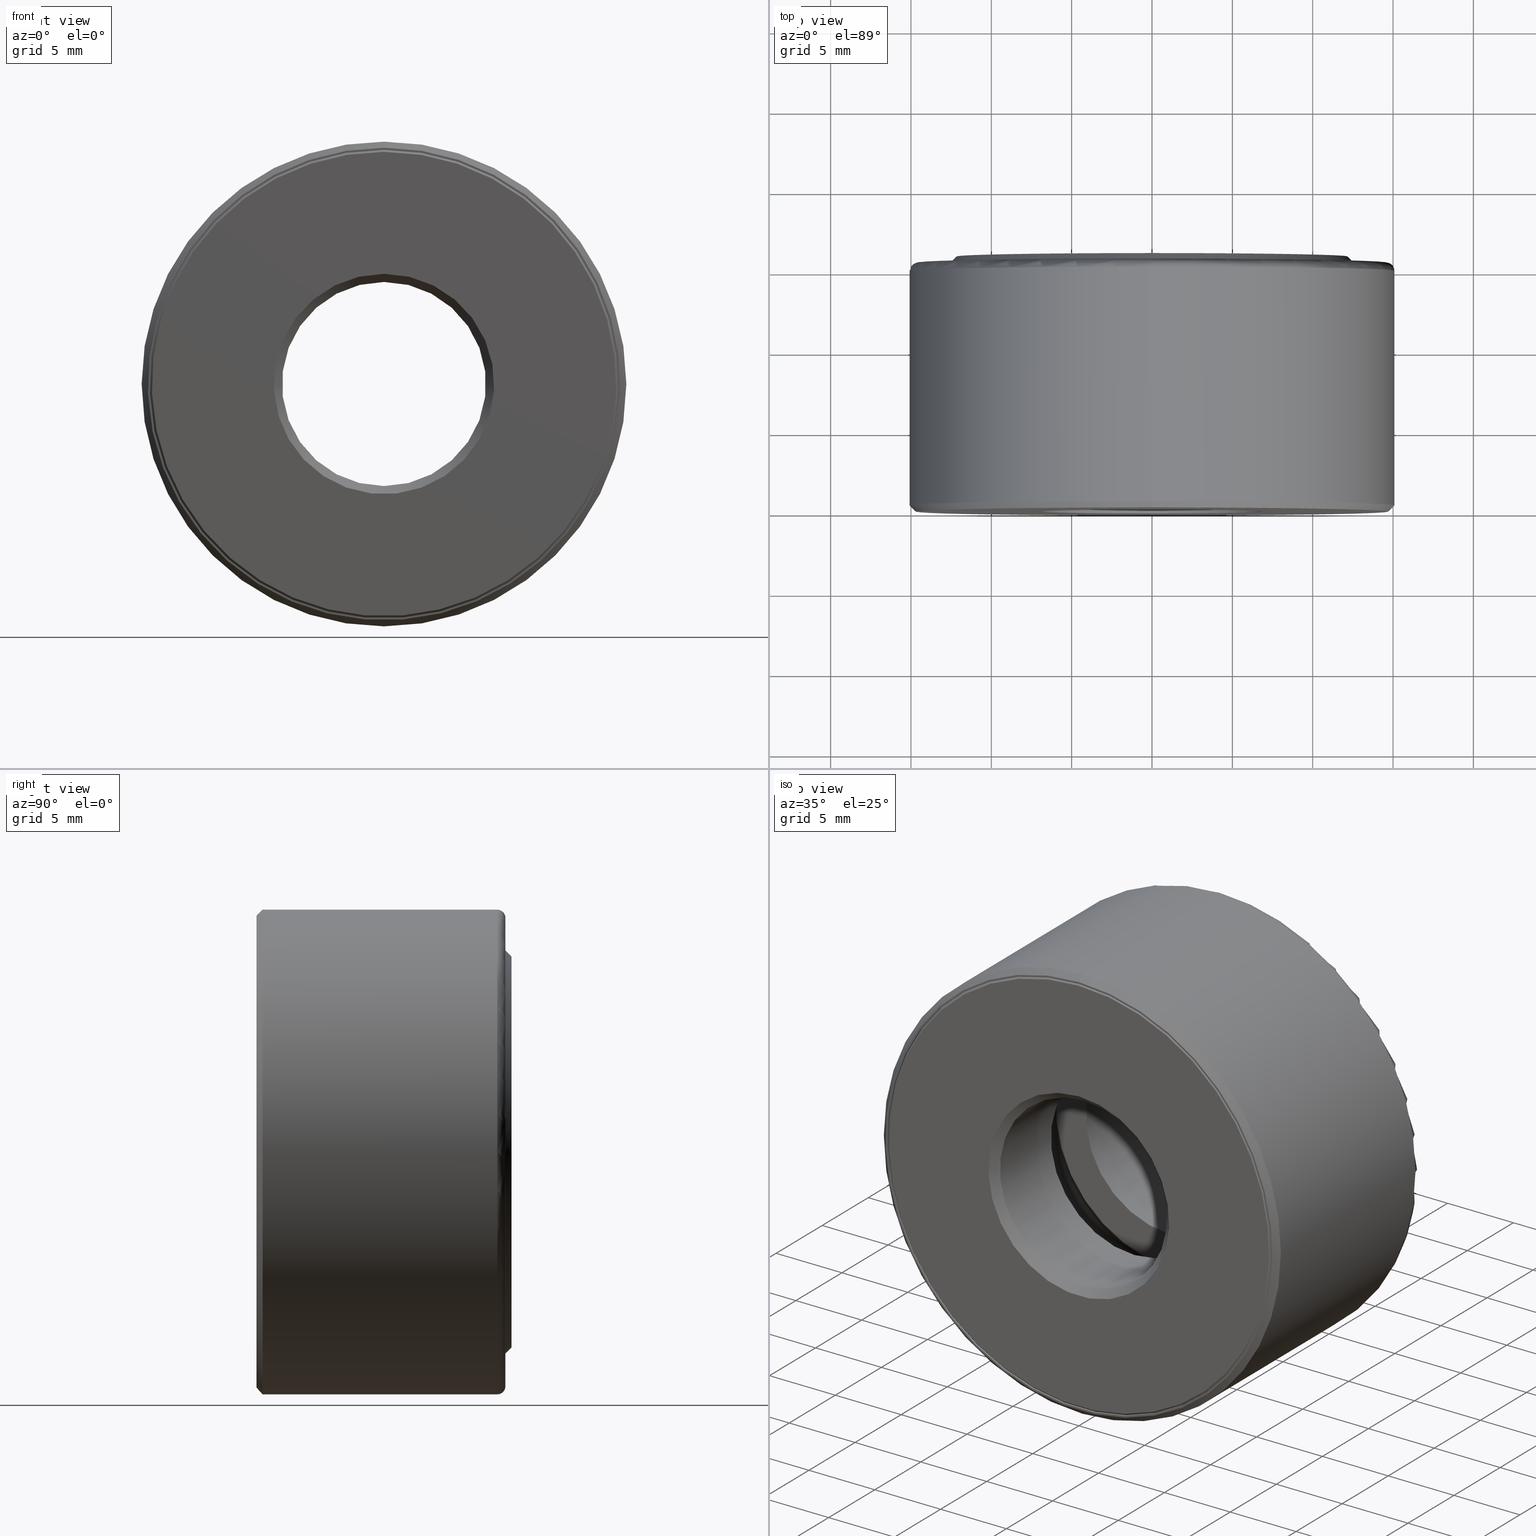
[diagram: canonical four-view strip — front | top / right | iso, engineering-drawing reading convention]
A machine part, canonical four-view strip (front | top / right | iso — engineering-drawing reading convention). The complete STEP part file that produces these views, byte-faithful:
ISO-10303-21;
HEADER;
FILE_DESCRIPTION (( 'STEP AP203' ),
    '1' );
FILE_NAME ('T-100-1.step',
    '2016-06-29T18:27:08',
    ( '' ),
    ( '' ),
    'SwSTEP 2.0',
    'SolidWorks 2016',
    '' );
FILE_SCHEMA (( 'CONFIG_CONTROL_DESIGN' ));
ENDSEC;

DATA;
#1 = DIRECTION ( 'NONE',  ( -0.0000000000000000000, 1.000000000000000000, -0.0000000000000000000 ) ) ;
#2 = EDGE_CURVE ( 'NONE', #15, #15, #521, .T. ) ;
#3 = DIRECTION ( 'NONE',  ( 1.047444401652940300E-014, 0.0000000000000000000, 1.000000000000000000 ) ) ;
#4 = EDGE_LOOP ( 'NONE', ( #420 ) ) ;
#5 = APPROVAL_PERSON_ORGANIZATION ( #264, #194, #90 ) ;
#6 = DIRECTION ( 'NONE',  ( -0.0000000000000000000, 1.000000000000000000, -0.0000000000000000000 ) ) ;
#7 = SPHERICAL_SURFACE ( 'NONE', #17, 0.1250000000000000600 ) ;
#8 = EDGE_CURVE ( 'NONE', #177, #177, #534, .T. ) ;
#9 = DIRECTION ( 'NONE',  ( -0.0000000000000000000, 1.000000000000000000, -0.0000000000000000000 ) ) ;
#10 = ADVANCED_FACE ( 'NONE', ( #543, #562 ), #100, .T. ) ;
#11 = DIRECTION ( 'NONE',  ( 0.0000000000000000000, 0.0000000000000000000, 1.000000000000000000 ) ) ;
#12 = DIRECTION ( 'NONE',  ( 1.000000000000000000, 0.0000000000000000000, 0.0000000000000000000 ) ) ;
#13 = ORIENTED_EDGE ( 'NONE', *, *, #145, .F. ) ;
#14 = EDGE_LOOP ( 'NONE', ( #122 ) ) ;
#15 = VERTEX_POINT ( 'NONE', #592 ) ;
#16 = EDGE_LOOP ( 'NONE', ( #344 ) ) ;
#17 = AXIS2_PLACEMENT_3D ( 'NONE', #135, #406, #228 ) ;
#18 = AXIS2_PLACEMENT_3D ( 'NONE', #405, #591, #82 ) ;
#19 = EDGE_LOOP ( 'NONE', ( #580 ) ) ;
#20 = CIRCLE ( 'NONE', #52, 0.2499999999999998100 ) ;
#21 = CARTESIAN_POINT ( 'NONE',  ( 0.0000000000000000000, 3.308097179827818800E-016, 0.0000000000000000000 ) ) ;
#22 = CARTESIAN_POINT ( 'NONE',  ( 0.0000000000000000000, 0.0000000000000000000, 0.0000000000000000000 ) ) ;
#23 = MANIFOLD_SOLID_BREP ( 'Revolve2[1]', #175 ) ;
#24 = DIRECTION ( 'NONE',  ( 0.0000000000000000000, 0.0000000000000000000, 1.000000000000000000 ) ) ;
#25 = ORIENTED_EDGE ( 'NONE', *, *, #55, .F. ) ;
#26 = FACE_OUTER_BOUND ( 'NONE', #365, .T. ) ;
#27 = DIRECTION ( 'NONE',  ( 0.0000000000000000000, 0.0000000000000000000, -1.000000000000000000 ) ) ;
#28 = FACE_OUTER_BOUND ( 'NONE', #491, .T. ) ;
#29 = AXIS2_PLACEMENT_3D ( 'NONE', #251, #9, #335 ) ;
#30 = DIRECTION ( 'NONE',  ( 0.0000000000000000000, 0.0000000000000000000, 1.000000000000000000 ) ) ;
#31 = EDGE_LOOP ( 'NONE', ( #560 ) ) ;
#32 = EDGE_LOOP ( 'NONE', ( #388 ) ) ;
#33 = CC_DESIGN_DATE_AND_TIME_ASSIGNMENT ( #596, #371, ( #537 ) ) ;
#34 = DIRECTION ( 'NONE',  ( 0.0000000000000000000, 0.0000000000000000000, 1.000000000000000000 ) ) ;
#35 = AXIS2_PLACEMENT_3D ( 'NONE', #508, #235, #204 ) ;
#36 = PERSON_AND_ORGANIZATION_ROLE ( 'design_supplier' ) ;
#37 = ORIENTED_EDGE ( 'NONE', *, *, #2, .T. ) ;
#38 = LOCAL_TIME ( 14, 27, 8.000000000000000000, #315 ) ;
#39 = APPROVAL_STATUS ( 'not_yet_approved' ) ;
#40 = VERTEX_POINT ( 'NONE', #465 ) ;
#41 = FACE_BOUND ( 'NONE', #4, .T. ) ;
#42 =( LENGTH_UNIT ( ) NAMED_UNIT ( * ) SI_UNIT ( $, .METRE. ) );
#43 = APPLICATION_PROTOCOL_DEFINITION ( 'international standard', 'config_control_design', 1994, #323 ) ;
#44 = EDGE_CURVE ( 'NONE', #505, #505, #60, .T. ) ;
#45 = AXIS2_PLACEMENT_3D ( 'NONE', #277, #514, #466 ) ;
#46 =( NAMED_UNIT ( * ) PLANE_ANGLE_UNIT ( ) SI_UNIT ( $, .RADIAN. ) );
#47 = ADVANCED_FACE ( 'NONE', ( #498, #161 ), #325, .T. ) ;
#48 = DIRECTION ( 'NONE',  ( 0.0000000000000000000, -1.000000000000000000, 0.0000000000000000000 ) ) ;
#49 = CLOSED_SHELL ( 'NONE', ( #598 ) ) ;
#50 = DATE_AND_TIME ( #183, #305 ) ;
#51 = CONICAL_SURFACE ( 'NONE', #493, 0.2499999999999998100, 0.7853981633974517200 ) ;
#52 = AXIS2_PLACEMENT_3D ( 'NONE', #280, #320, #361 ) ;
#53 = CARTESIAN_POINT ( 'NONE',  ( -4.606136756268805600E-015, 0.3125000000000004400, -0.4397500000000001400 ) ) ;
#54 = ADVANCED_FACE ( 'NONE', ( #415, #590 ), #568, .F. ) ;
#55 = EDGE_CURVE ( 'NONE', #566, #566, #94, .T. ) ;
#56 = DIRECTION ( 'NONE',  ( 0.0000000000000000000, 0.0000000000000000000, 1.000000000000000000 ) ) ;
#57 = ORIENTED_EDGE ( 'NONE', *, *, #604, .F. ) ;
#58 = LENGTH_MEASURE_WITH_UNIT ( LENGTH_MEASURE( 0.02539999999999999900 ), #42 );
#59 = VERTEX_POINT ( 'NONE', #195 ) ;
#60 = CIRCLE ( 'NONE', #334, 0.3397500000000001100 ) ;
#61 = DIRECTION ( 'NONE',  ( -0.0000000000000000000, 1.000000000000000000, -0.0000000000000000000 ) ) ;
#62 = AXIS2_PLACEMENT_3D ( 'NONE', #53, #432, #3 ) ;
#63 = DIRECTION ( 'NONE',  ( 0.0000000000000000000, 0.0000000000000000000, 1.000000000000000000 ) ) ;
#64 = ORIENTED_EDGE ( 'NONE', *, *, #181, .T. ) ;
#65 = ORGANIZATION ( 'UNSPECIFIED', 'UNSPECIFIED', '' ) ;
#66 = CIRCLE ( 'NONE', #260, 0.2499999999999998100 ) ;
#67 = CARTESIAN_POINT ( 'NONE',  ( 0.0000000000000000000, 0.2375000000000005400, 0.0000000000000000000 ) ) ;
#68 = DIRECTION ( 'NONE',  ( -0.0000000000000000000, 1.000000000000000000, 0.0000000000000000000 ) ) ;
#69 = AXIS2_PLACEMENT_3D ( 'NONE', #526, #252, #384 ) ;
#70 = ORIENTED_EDGE ( 'NONE', *, *, #307, .T. ) ;
#71 = VERTEX_POINT ( 'NONE', #464 ) ;
#72 = CIRCLE ( 'NONE', #366, 0.3397500000000001100 ) ;
#73 = DIRECTION ( 'NONE',  ( 0.0000000000000000000, -0.0000000000000000000, -1.000000000000000000 ) ) ;
#74 = DIRECTION ( 'NONE',  ( 0.0000000000000000000, 0.0000000000000000000, -1.000000000000000000 ) ) ;
#75 = EDGE_LOOP ( 'NONE', ( #223 ) ) ;
#76 = CC_DESIGN_PERSON_AND_ORGANIZATION_ASSIGNMENT ( #504, #419, ( #537 ) ) ;
#77 = CALENDAR_DATE ( 2016, 29, 6 ) ;
#78 = CARTESIAN_POINT ( 'NONE',  ( 0.0000000000000000000, 0.5899999999999999700, 0.0000000000000000000 ) ) ;
#79 = EDGE_LOOP ( 'NONE', ( #13 ) ) ;
#80 = AXIS2_PLACEMENT_3D ( 'NONE', #158, #213, #485 ) ;
#81 = DIRECTION ( 'NONE',  ( 0.0000000000000000000, 0.0000000000000000000, 1.000000000000000000 ) ) ;
#82 = DIRECTION ( 'NONE',  ( 0.0000000000000000000, -0.0000000000000000000, -1.000000000000000000 ) ) ;
#83 = EDGE_LOOP ( 'NONE', ( #539 ) ) ;
#84 = VERTEX_POINT ( 'NONE', #411 ) ;
#85 = CARTESIAN_POINT ( 'NONE',  ( 0.0000000000000000000, 0.3875000000000004000, 0.5667500000000002000 ) ) ;
#86 = CIRCLE ( 'NONE', #430, 0.2499999999999998100 ) ;
#87 = PERSON_AND_ORGANIZATION_ROLE ( 'design_owner' ) ;
#88 = CC_DESIGN_PERSON_AND_ORGANIZATION_ASSIGNMENT ( #151, #87, ( #494 ) ) ;
#89 = ORIENTED_EDGE ( 'NONE', *, *, #112, .T. ) ;
#90 = APPROVAL_ROLE ( '' ) ;
#91 = FACE_OUTER_BOUND ( 'NONE', #14, .T. ) ;
#92 = AXIS2_PLACEMENT_3D ( 'NONE', #123, #221, #178 ) ;
#93 = DIRECTION ( 'NONE',  ( -0.0000000000000000000, 1.000000000000000000, -0.0000000000000000000 ) ) ;
#94 = CIRCLE ( 'NONE', #29, 0.5737500000000004300 ) ;
#95 = CARTESIAN_POINT ( 'NONE',  ( 0.0000000000000000000, 0.5899999999999999700, 0.5937500000000002200 ) ) ;
#96 = CARTESIAN_POINT ( 'NONE',  ( 0.0000000000000000000, 0.6250000000000005600, 0.0000000000000000000 ) ) ;
#97 = ADVANCED_FACE ( 'NONE', ( ), #512, .T. ) ;
#98 = EDGE_CURVE ( 'NONE', #111, #111, #291, .T. ) ;
#99 = CC_DESIGN_PERSON_AND_ORGANIZATION_ASSIGNMENT ( #210, #36, ( #349 ) ) ;
#100 = PLANE ( 'NONE',  #105 ) ;
#101 = ORIENTED_EDGE ( 'NONE', *, *, #152, .T. ) ;
#102 = ADVANCED_FACE ( 'NONE', ( #28, #575 ), #206, .F. ) ;
#103 = LOCAL_TIME ( 14, 27, 8.000000000000000000, #548 ) ;
#104 = FACE_OUTER_BOUND ( 'NONE', #314, .T. ) ;
#105 = AXIS2_PLACEMENT_3D ( 'NONE', #96, #431, #332 ) ;
#106 = PLANE ( 'NONE',  #452 ) ;
#107 = CARTESIAN_POINT ( 'NONE',  ( 0.0000000000000000000, 0.2375000000000004100, 0.0000000000000000000 ) ) ;
#108 = EDGE_LOOP ( 'NONE', ( #57 ) ) ;
#109 = ORIENTED_EDGE ( 'NONE', *, *, #577, .T. ) ;
#110 = CARTESIAN_POINT ( 'NONE',  ( 0.0000000000000000000, 0.3875000000000004000, 0.0000000000000000000 ) ) ;
#111 = VERTEX_POINT ( 'NONE', #459 ) ;
#112 = EDGE_CURVE ( 'NONE', #250, #250, #362, .T. ) ;
#113 = CC_DESIGN_DATE_AND_TIME_ASSIGNMENT ( #541, #190, ( #132 ) ) ;
#114 = CARTESIAN_POINT ( 'NONE',  ( 0.0000000000000000000, 0.6100000000000001000, 0.0000000000000000000 ) ) ;
#115 = AXIS2_PLACEMENT_3D ( 'NONE', #120, #448, #174 ) ;
#116 = CARTESIAN_POINT ( 'NONE',  ( 0.0000000000000000000, 0.01999999999999999000, 0.0000000000000000000 ) ) ;
#117 = ORIENTED_EDGE ( 'NONE', *, *, #443, .T. ) ;
#118 = CIRCLE ( 'NONE', #441, 0.5667500000000002000 ) ;
#119 = EDGE_CURVE ( 'NONE', #367, #367, #72, .T. ) ;
#120 = CARTESIAN_POINT ( 'NONE',  ( 0.0000000000000000000, 0.5899999999999999700, 0.0000000000000000000 ) ) ;
#121 = PRODUCT_RELATED_PRODUCT_CATEGORY ( 'detail', '', ( #494 ) ) ;
#122 = ORIENTED_EDGE ( 'NONE', *, *, #443, .F. ) ;
#123 = CARTESIAN_POINT ( 'NONE',  ( 0.0000000000000000000, 0.0000000000000000000, 0.0000000000000000000 ) ) ;
#124 = ORIENTED_EDGE ( 'NONE', *, *, #98, .T. ) ;
#125 = CIRCLE ( 'NONE', #287, 0.5687500000000003100 ) ;
#126 = CIRCLE ( 'NONE', #128, 0.5137500000000004800 ) ;
#127 = DIRECTION ( 'NONE',  ( -0.0000000000000000000, 1.000000000000000000, -0.0000000000000000000 ) ) ;
#128 = AXIS2_PLACEMENT_3D ( 'NONE', #444, #544, #219 ) ;
#129 = DIRECTION ( 'NONE',  ( -0.0000000000000000000, 1.000000000000000000, -0.0000000000000000000 ) ) ;
#130 = DIRECTION ( 'NONE',  ( 0.0000000000000000000, 0.0000000000000000000, 1.000000000000000000 ) ) ;
#131 = ORIENTED_EDGE ( 'NONE', *, *, #423, .F. ) ;
#132 = SECURITY_CLASSIFICATION ( '', '', #137 ) ;
#133 = DIRECTION ( 'NONE',  ( 0.0000000000000000000, 0.0000000000000000000, 1.000000000000000000 ) ) ;
#134 = CIRCLE ( 'NONE', #186, 0.5937500000000002200 ) ;
#135 = CARTESIAN_POINT ( 'NONE',  ( 1.535378918756268400E-015, 0.3125000000000004400, 0.4397500000000001400 ) ) ;
#136 = AXIS2_PLACEMENT_3D ( 'NONE', #425, #156, #386 ) ;
#137 = SECURITY_CLASSIFICATION_LEVEL ( 'unclassified' ) ;
#138 = ADVANCED_FACE ( 'NONE', ( #557, #473 ), #218, .F. ) ;
#139 = CARTESIAN_POINT ( 'NONE',  ( 0.0000000000000000000, 0.3875000000000004600, 0.5397500000000001700 ) ) ;
#140 = EDGE_LOOP ( 'NONE', ( #357 ) ) ;
#141 = EDGE_CURVE ( 'NONE', #324, #324, #449, .T. ) ;
#142 = ORIENTED_EDGE ( 'NONE', *, *, #170, .F. ) ;
#143 = VERTEX_POINT ( 'NONE', #475 ) ;
#144 = APPROVAL_ROLE ( '' ) ;
#145 = EDGE_CURVE ( 'NONE', #462, #462, #463, .T. ) ;
#146 = DIRECTION ( 'NONE',  ( -0.0000000000000000000, 1.000000000000000000, -0.0000000000000000000 ) ) ;
#147 = AXIS2_PLACEMENT_3D ( 'NONE', #313, #127, #30 ) ;
#148 = CARTESIAN_POINT ( 'NONE',  ( 0.0000000000000000000, 0.3875000000000004000, 0.2499999999999998100 ) ) ;
#149 = ADVANCED_FACE ( 'NONE', ( #456, #426 ), #51, .F. ) ;
#150 = EDGE_LOOP ( 'NONE', ( #401 ) ) ;
#151 = PERSON_AND_ORGANIZATION ( #535, #65 ) ;
#152 = EDGE_CURVE ( 'NONE', #391, #391, #86, .T. ) ;
#153 = DIRECTION ( 'NONE',  ( -0.0000000000000000000, 1.000000000000000000, -0.0000000000000000000 ) ) ;
#154 = CIRCLE ( 'NONE', #246, 0.5737500000000004300 ) ;
#155 = ADVANCED_FACE ( 'NONE', ( ), #331, .T. ) ;
#156 = DIRECTION ( 'NONE',  ( -0.0000000000000000000, 1.000000000000000000, -0.0000000000000000000 ) ) ;
#157 = CARTESIAN_POINT ( 'NONE',  ( 0.0000000000000000000, 0.3125000000000003300, 0.0000000000000000000 ) ) ;
#158 = CARTESIAN_POINT ( 'NONE',  ( 0.0000000000000000000, 3.308097179827818800E-016, 0.0000000000000000000 ) ) ;
#159 = EDGE_LOOP ( 'NONE', ( #468 ) ) ;
#160 = FACE_OUTER_BOUND ( 'NONE', #19, .T. ) ;
#161 = FACE_BOUND ( 'NONE', #586, .T. ) ;
#162 = DIRECTION ( 'NONE',  ( 0.0000000000000000000, 0.0000000000000000000, 1.000000000000000000 ) ) ;
#163 = DIRECTION ( 'NONE',  ( 0.0000000000000000000, -1.000000000000000000, 0.0000000000000000000 ) ) ;
#164 = EDGE_CURVE ( 'NONE', #492, #492, #169, .T. ) ;
#165 = DIRECTION ( 'NONE',  ( -0.0000000000000000000, 1.000000000000000000, -0.0000000000000000000 ) ) ;
#166 = ORIENTED_EDGE ( 'NONE', *, *, #307, .F. ) ;
#167 = DIRECTION ( 'NONE',  ( -0.0000000000000000000, 1.000000000000000000, -0.0000000000000000000 ) ) ;
#168 = PERSON_AND_ORGANIZATION ( #535, #65 ) ;
#169 = CIRCLE ( 'NONE', #524, 0.5397500000000001700 ) ;
#170 = EDGE_CURVE ( 'NONE', #84, #84, #435, .T. ) ;
#171 = DIRECTION ( 'NONE',  ( 0.0000000000000000000, -0.0000000000000000000, -1.000000000000000000 ) ) ;
#172 = DIRECTION ( 'NONE',  ( 0.0000000000000000000, -1.000000000000000000, 0.0000000000000000000 ) ) ;
#173 = EDGE_CURVE ( 'NONE', #556, #556, #299, .T. ) ;
#174 = DIRECTION ( 'NONE',  ( 0.0000000000000000000, 0.0000000000000000000, 1.000000000000000000 ) ) ;
#175 = CLOSED_SHELL ( 'NONE', ( #138, #54, #519, #193, #372, #422, #467, #515, #244, #236, #523, #47, #294, #416, #292, #286 ) ) ;
#176 = APPROVAL_DATE_TIME ( #330, #427 ) ;
#177 = VERTEX_POINT ( 'NONE', #506 ) ;
#178 = DIRECTION ( 'NONE',  ( 0.0000000000000000000, 0.0000000000000000000, 1.000000000000000000 ) ) ;
#179 = FACE_OUTER_BOUND ( 'NONE', #31, .T. ) ;
#180 = CARTESIAN_POINT ( 'NONE',  ( 0.0000000000000000000, 0.5370000000000013700, 0.0000000000000000000 ) ) ;
#181 = EDGE_CURVE ( 'NONE', #383, #383, #440, .T. ) ;
#182 = EDGE_LOOP ( 'NONE', ( #479 ) ) ;
#183 = CALENDAR_DATE ( 2016, 29, 6 ) ;
#184 = FACE_OUTER_BOUND ( 'NONE', #108, .T. ) ;
#185 = DIRECTION ( 'NONE',  ( -0.0000000000000000000, 1.000000000000000000, -0.0000000000000000000 ) ) ;
#186 = AXIS2_PLACEMENT_3D ( 'NONE', #230, #185, #453 ) ;
#187 = DIRECTION ( 'NONE',  ( 0.0000000000000000000, -1.000000000000000000, 0.0000000000000000000 ) ) ;
#188 = ORIENTED_EDGE ( 'NONE', *, *, #55, .T. ) ;
#189 = CALENDAR_DATE ( 2016, 29, 6 ) ;
#190 = DATE_TIME_ROLE ( 'classification_date' ) ;
#191 = FACE_OUTER_BOUND ( 'NONE', #16, .T. ) ;
#192 = APPROVAL_STATUS ( 'not_yet_approved' ) ;
#193 = ADVANCED_FACE ( 'NONE', ( #316, #200 ), #573, .F. ) ;
#194 = APPROVAL ( #39, 'UNSPECIFIED' ) ;
#195 = CARTESIAN_POINT ( 'NONE',  ( 0.0000000000000000000, 3.308097179827818800E-016, 0.5687500000000003100 ) ) ;
#196 = PERSON_AND_ORGANIZATION_ROLE ( 'classification_officer' ) ;
#197 = AXIS2_PLACEMENT_3D ( 'NONE', #116, #172, #27 ) ;
#198 = CARTESIAN_POINT ( 'NONE',  ( 0.0000000000000000000, 0.2375000000000006800, 0.0000000000000000000 ) ) ;
#199 =( NAMED_UNIT ( * ) SI_UNIT ( $, .STERADIAN. ) SOLID_ANGLE_UNIT ( ) );
#200 = FACE_BOUND ( 'NONE', #150, .T. ) ;
#201 =( GEOMETRIC_REPRESENTATION_CONTEXT ( 3 ) GLOBAL_UNCERTAINTY_ASSIGNED_CONTEXT ( ( #553 ) ) GLOBAL_UNIT_ASSIGNED_CONTEXT ( ( #516, #46, #199 ) ) REPRESENTATION_CONTEXT ( 'NONE', 'WORKASPACE' ) );
#202 = ORIENTED_EDGE ( 'NONE', *, *, #141, .F. ) ;
#203 = AXIS2_PLACEMENT_3D ( 'NONE', #381, #48, #476 ) ;
#204 = DIRECTION ( 'NONE',  ( 0.0000000000000000000, 0.0000000000000000000, 1.000000000000000000 ) ) ;
#205 = CONICAL_SURFACE ( 'NONE', #593, 0.4787500000000010100, 0.7853981633974482800 ) ;
#206 = TOROIDAL_SURFACE ( 'NONE', #358, 0.4397500000000001400, 0.1250000000000000800 ) ;
#207 = AXIS2_PLACEMENT_3D ( 'NONE', #390, #436, #208 ) ;
#208 = DIRECTION ( 'NONE',  ( 0.0000000000000000000, 0.0000000000000000000, 1.000000000000000000 ) ) ;
#209 = CLOSED_SHELL ( 'NONE', ( #97 ) ) ;
#210 = PERSON_AND_ORGANIZATION ( #535, #65 ) ;
#211 = FACE_BOUND ( 'NONE', #336, .T. ) ;
#212 = AXIS2_PLACEMENT_3D ( 'NONE', #233, #546, #273 ) ;
#213 = DIRECTION ( 'NONE',  ( -0.0000000000000000000, 1.000000000000000000, -0.0000000000000000000 ) ) ;
#214 = DIRECTION ( 'NONE',  ( 0.0000000000000000000, 0.0000000000000000000, 1.000000000000000000 ) ) ;
#215 = AXIS2_PLACEMENT_3D ( 'NONE', #410, #597, #551 ) ;
#216 = CARTESIAN_POINT ( 'NONE',  ( -1.254211620749968200E-032, 3.276083336152065600E-016, 0.0000000000000000000 ) ) ;
#217 = FACE_OUTER_BOUND ( 'NONE', #588, .T. ) ;
#218 = TOROIDAL_SURFACE ( 'NONE', #326, 0.4397500000000001400, 0.1249999999999999600 ) ;
#219 = DIRECTION ( 'NONE',  ( 0.0000000000000000000, 0.0000000000000000000, 1.000000000000000000 ) ) ;
#220 = PLANE ( 'NONE',  #227 ) ;
#221 = DIRECTION ( 'NONE',  ( -0.0000000000000000000, 1.000000000000000000, -0.0000000000000000000 ) ) ;
#222 = EDGE_LOOP ( 'NONE', ( #238 ) ) ;
#223 = ORIENTED_EDGE ( 'NONE', *, *, #581, .T. ) ;
#224 = FACE_BOUND ( 'NONE', #237, .T. ) ;
#225 = CARTESIAN_POINT ( 'NONE',  ( 0.0000000000000000000, 0.0000000000000000000, 0.0000000000000000000 ) ) ;
#226 = ORIENTED_EDGE ( 'NONE', *, *, #423, .T. ) ;
#227 = AXIS2_PLACEMENT_3D ( 'NONE', #216, #68, #270 ) ;
#228 = DIRECTION ( 'NONE',  ( -3.491481338843134500E-015, 0.0000000000000000000, -1.000000000000000000 ) ) ;
#229 = PRODUCT_DEFINITION_SHAPE ( 'NONE', 'NONE',  #537 ) ;
#230 = CARTESIAN_POINT ( 'NONE',  ( 0.0000000000000000000, 0.01500000000000001200, 0.0000000000000000000 ) ) ;
#231 = EDGE_LOOP ( 'NONE', ( #101 ) ) ;
#232 = CYLINDRICAL_SURFACE ( 'NONE', #501, 0.5137500000000004800 ) ;
#233 = CARTESIAN_POINT ( 'NONE',  ( 0.0000000000000000000, 0.0000000000000000000, 0.0000000000000000000 ) ) ;
#234 = AXIS2_PLACEMENT_3D ( 'NONE', #245, #93, #337 ) ;
#235 = DIRECTION ( 'NONE',  ( -0.0000000000000000000, 1.000000000000000000, -0.0000000000000000000 ) ) ;
#236 = ADVANCED_FACE ( 'NONE', ( #339, #567 ), #106, .F. ) ;
#237 = EDGE_LOOP ( 'NONE', ( #202 ) ) ;
#238 = ORIENTED_EDGE ( 'NONE', *, *, #173, .F. ) ;
#239 = CARTESIAN_POINT ( 'NONE',  ( 0.0000000000000000000, 0.2375000000000004100, 0.5397500000000001700 ) ) ;
#240 = FACE_OUTER_BOUND ( 'NONE', #599, .T. ) ;
#241 = FACE_BOUND ( 'NONE', #445, .T. ) ;
#242 = MANIFOLD_SOLID_BREP ( 'BALLS[1]', #49 ) ;
#243 = CARTESIAN_POINT ( 'NONE',  ( 0.0000000000000000000, 0.6099999999999998800, 0.5137500000000004800 ) ) ;
#244 = ADVANCED_FACE ( 'NONE', ( #311, #241 ), #530, .T. ) ;
#245 = CARTESIAN_POINT ( 'NONE',  ( 0.0000000000000000000, 3.308097179827818800E-016, 0.0000000000000000000 ) ) ;
#246 = AXIS2_PLACEMENT_3D ( 'NONE', #368, #129, #500 ) ;
#247 = DIRECTION ( 'NONE',  ( 0.0000000000000000000, 0.0000000000000000000, 1.000000000000000000 ) ) ;
#248 = EDGE_LOOP ( 'NONE', ( #89 ) ) ;
#249 = COORDINATED_UNIVERSAL_TIME_OFFSET ( 5, 0, .BEHIND. ) ;
#250 = VERTEX_POINT ( 'NONE', #513 ) ;
#251 = CARTESIAN_POINT ( 'NONE',  ( 0.0000000000000000000, 3.301953898302149100E-016, 0.0000000000000000000 ) ) ;
#252 = DIRECTION ( 'NONE',  ( -0.0000000000000000000, 1.000000000000000000, -0.0000000000000000000 ) ) ;
#253 = CARTESIAN_POINT ( 'NONE',  ( -1.807281054304351700E-016, 0.2375000000000005200, 0.0000000000000000000 ) ) ;
#254 = ORIENTED_EDGE ( 'NONE', *, *, #170, .T. ) ;
#255 = CLOSED_SHELL ( 'NONE', ( #155 ) ) ;
#256 = DIRECTION ( 'NONE',  ( -0.0000000000000000000, 1.000000000000000000, -0.0000000000000000000 ) ) ;
#257 = VERTEX_POINT ( 'NONE', #148 ) ;
#258 = DIMENSIONAL_EXPONENTS ( 1.000000000000000000, 0.0000000000000000000, 0.0000000000000000000, 0.0000000000000000000, 0.0000000000000000000, 0.0000000000000000000, 0.0000000000000000000 ) ;
#259 = CARTESIAN_POINT ( 'NONE',  ( -0.4397500000000001400, 0.3125000000000004400, 0.0000000000000000000 ) ) ;
#260 = AXIS2_PLACEMENT_3D ( 'NONE', #267, #579, #451 ) ;
#261 = DIRECTION ( 'NONE',  ( 0.0000000000000000000, 0.0000000000000000000, 1.000000000000000000 ) ) ;
#262 = MANIFOLD_SOLID_BREP ( 'BALLS[3]', #209 ) ;
#263 = EDGE_LOOP ( 'NONE', ( #226 ) ) ;
#264 = PERSON_AND_ORGANIZATION ( #535, #65 ) ;
#265 = FACE_OUTER_BOUND ( 'NONE', #547, .T. ) ;
#266 = PLANE ( 'NONE',  #407 ) ;
#267 = CARTESIAN_POINT ( 'NONE',  ( 0.0000000000000000000, 0.3875000000000004000, 0.0000000000000000000 ) ) ;
#268 = AXIS2_PLACEMENT_3D ( 'NONE', #198, #146, #56 ) ;
#269 = EDGE_LOOP ( 'NONE', ( #117 ) ) ;
#270 = DIRECTION ( 'NONE',  ( 0.0000000000000000000, 0.0000000000000000000, 1.000000000000000000 ) ) ;
#271 = CYLINDRICAL_SURFACE ( 'NONE', #413, 0.5737500000000004300 ) ;
#272 = FACE_OUTER_BOUND ( 'NONE', #329, .T. ) ;
#273 = DIRECTION ( 'NONE',  ( 0.0000000000000000000, 0.0000000000000000000, 1.000000000000000000 ) ) ;
#274 = CARTESIAN_POINT ( 'NONE',  ( 0.0000000000000000000, 0.2375000000000004600, 0.3397500000000001100 ) ) ;
#275 = ORIENTED_EDGE ( 'NONE', *, *, #44, .F. ) ;
#276 = APPROVAL_DATE_TIME ( #50, #470 ) ;
#277 = CARTESIAN_POINT ( 'NONE',  ( 0.0000000000000000000, 0.0000000000000000000, 0.0000000000000000000 ) ) ;
#278 = TOROIDAL_SURFACE ( 'NONE', #563, 0.5737500000000004300, 0.01999999999999992400 ) ;
#279 = AXIS2_PLACEMENT_3D ( 'NONE', #300, #165, #394 ) ;
#280 = CARTESIAN_POINT ( 'NONE',  ( 0.0000000000000000000, 0.01999999999999999000, 0.0000000000000000000 ) ) ;
#281 = CARTESIAN_POINT ( 'NONE',  ( 0.0000000000000000000, 0.6250000000000005600, 0.4787500000000010100 ) ) ;
#282 = ORIENTED_EDGE ( 'NONE', *, *, #98, .F. ) ;
#283 = CYLINDRICAL_SURFACE ( 'NONE', #212, 0.2499999999999998100 ) ;
#284 = FACE_OUTER_BOUND ( 'NONE', #231, .T. ) ;
#285 = CARTESIAN_POINT ( 'NONE',  ( 0.0000000000000000000, 0.5370000000000013700, 0.5667500000000002000 ) ) ;
#286 = ADVANCED_FACE ( 'NONE', ( #211, #191 ), #528, .F. ) ;
#287 = AXIS2_PLACEMENT_3D ( 'NONE', #21, #442, #356 ) ;
#288 = CARTESIAN_POINT ( 'NONE',  ( 0.0000000000000000000, 0.3875000000000004600, 0.0000000000000000000 ) ) ;
#289 = EDGE_LOOP ( 'NONE', ( #509 ) ) ;
#290 = LOCAL_TIME ( 14, 27, 8.000000000000000000, #351 ) ;
#291 = CIRCLE ( 'NONE', #234, 0.5787500000000004300 ) ;
#292 = ADVANCED_FACE ( 'NONE', ( #179, #284 ), #376, .F. ) ;
#293 = CC_DESIGN_PERSON_AND_ORGANIZATION_ASSIGNMENT ( #322, #554, ( #349 ) ) ;
#294 = ADVANCED_FACE ( 'NONE', ( #404, #306 ), #220, .F. ) ;
#295 = AXIS2_PLACEMENT_3D ( 'NONE', #259, #571, #12 ) ;
#296 = DIRECTION ( 'NONE',  ( -0.0000000000000000000, 1.000000000000000000, -0.0000000000000000000 ) ) ;
#297 = EDGE_LOOP ( 'NONE', ( #275 ) ) ;
#298 = FACE_OUTER_BOUND ( 'NONE', #460, .T. ) ;
#299 = CIRCLE ( 'NONE', #207, 0.5397500000000001700 ) ;
#300 = CARTESIAN_POINT ( 'NONE',  ( 0.0000000000000000000, 0.6250000000000005600, 0.0000000000000000000 ) ) ;
#301 = AXIS2_PLACEMENT_3D ( 'NONE', #576, #302, #11 ) ;
#302 = DIRECTION ( 'NONE',  ( -0.0000000000000000000, 1.000000000000000000, 0.0000000000000000000 ) ) ;
#303 = MANIFOLD_SOLID_BREP ( 'Revolve2[2]', #527 ) ;
#304 = ORIENTED_EDGE ( 'NONE', *, *, #181, .F. ) ;
#305 = LOCAL_TIME ( 14, 27, 8.000000000000000000, #249 ) ;
#306 = FACE_BOUND ( 'NONE', #269, .T. ) ;
#307 = EDGE_CURVE ( 'NONE', #257, #257, #66, .T. ) ;
#308 = EDGE_LOOP ( 'NONE', ( #487 ) ) ;
#309 = CIRCLE ( 'NONE', #312, 0.5137500000000004800 ) ;
#310 = DIRECTION ( 'NONE',  ( -0.0000000000000000000, 1.000000000000000000, -0.0000000000000000000 ) ) ;
#311 = FACE_OUTER_BOUND ( 'NONE', #289, .T. ) ;
#312 = AXIS2_PLACEMENT_3D ( 'NONE', #78, #364, #130 ) ;
#313 = CARTESIAN_POINT ( 'NONE',  ( 0.0000000000000000000, 0.0000000000000000000, 0.0000000000000000000 ) ) ;
#314 = EDGE_LOOP ( 'NONE', ( #109 ) ) ;
#315 = COORDINATED_UNIVERSAL_TIME_OFFSET ( 5, 0, .BEHIND. ) ;
#316 = FACE_OUTER_BOUND ( 'NONE', #159, .T. ) ;
#317 = DIRECTION ( 'NONE',  ( -0.0000000000000000000, 1.000000000000000000, -0.0000000000000000000 ) ) ;
#318 = MANIFOLD_SOLID_BREP ( 'BALLS[2]', #408 ) ;
#319 = CC_DESIGN_APPROVAL ( #194, ( #537 ) ) ;
#320 = DIRECTION ( 'NONE',  ( -0.0000000000000000000, 1.000000000000000000, -0.0000000000000000000 ) ) ;
#321 = ORIENTED_EDGE ( 'NONE', *, *, #2, .F. ) ;
#322 = PERSON_AND_ORGANIZATION ( #535, #65 ) ;
#323 = APPLICATION_CONTEXT ( 'configuration controlled 3d designs of mechanical parts and assemblies' ) ;
#324 = VERTEX_POINT ( 'NONE', #281 ) ;
#325 = CONICAL_SURFACE ( 'NONE', #136, 0.5687500000000003100, 0.7853981633974555000 ) ;
#326 = AXIS2_PLACEMENT_3D ( 'NONE', #157, #153, #478 ) ;
#327 = ADVANCED_FACE ( 'NONE', ( #392, #272 ), #603, .T. ) ;
#328 = AXIS2_PLACEMENT_3D ( 'NONE', #253, #163, #585 ) ;
#329 = EDGE_LOOP ( 'NONE', ( #555 ) ) ;
#330 = DATE_AND_TIME ( #446, #424 ) ;
#331 = SPHERICAL_SURFACE ( 'NONE', #295, 0.1250000000000000600 ) ;
#332 = DIRECTION ( 'NONE',  ( 0.0000000000000000000, 0.0000000000000000000, 1.000000000000000000 ) ) ;
#333 = CARTESIAN_POINT ( 'NONE',  ( 0.0000000000000000000, 0.2375000000000004600, 0.0000000000000000000 ) ) ;
#334 = AXIS2_PLACEMENT_3D ( 'NONE', #333, #522, #605 ) ;
#335 = DIRECTION ( 'NONE',  ( 0.0000000000000000000, 0.0000000000000000000, 1.000000000000000000 ) ) ;
#336 = EDGE_LOOP ( 'NONE', ( #341 ) ) ;
#337 = DIRECTION ( 'NONE',  ( 0.0000000000000000000, 0.0000000000000000000, 1.000000000000000000 ) ) ;
#338 = VERTEX_POINT ( 'NONE', #243 ) ;
#339 = FACE_OUTER_BOUND ( 'NONE', #532, .T. ) ;
#340 = CARTESIAN_POINT ( 'NONE',  ( 0.0000000000000000000, 0.005000000000000342700, 0.0000000000000000000 ) ) ;
#341 = ORIENTED_EDGE ( 'NONE', *, *, #152, .F. ) ;
#342 = ORIENTED_EDGE ( 'NONE', *, *, #393, .F. ) ;
#343 = CONICAL_SURFACE ( 'NONE', #197, 0.2499999999999998100, 0.7853981633974512800 ) ;
#344 = ORIENTED_EDGE ( 'NONE', *, *, #44, .T. ) ;
#345 = DIRECTION ( 'NONE',  ( 0.0000000000000000000, 0.0000000000000000000, 1.000000000000000000 ) ) ;
#346 = AXIS2_PLACEMENT_3D ( 'NONE', #584, #310, #24 ) ;
#347 = DIRECTION ( 'NONE',  ( 0.0000000000000000000, -1.000000000000000000, 0.0000000000000000000 ) ) ;
#348 = EDGE_LOOP ( 'NONE', ( #64 ) ) ;
#349 = PRODUCT_DEFINITION_FORMATION_WITH_SPECIFIED_SOURCE ( 'ANY', '', #494, .NOT_KNOWN. ) ;
#350 = CARTESIAN_POINT ( 'NONE',  ( 0.0000000000000000000, 0.5899999999999999700, 0.0000000000000000000 ) ) ;
#351 = COORDINATED_UNIVERSAL_TIME_OFFSET ( 5, 0, .BEHIND. ) ;
#352 = CYLINDRICAL_SURFACE ( 'NONE', #483, 0.5937500000000002200 ) ;
#353 = CARTESIAN_POINT ( 'NONE',  ( 1.388689396779333200E-015, 0.6099999999999999900, 0.0000000000000000000 ) ) ;
#354 = AXIS2_PLACEMENT_3D ( 'NONE', #110, #296, #162 ) ;
#355 = CARTESIAN_POINT ( 'NONE',  ( 0.0000000000000000000, 0.0000000000000000000, 0.0000000000000000000 ) ) ;
#356 = DIRECTION ( 'NONE',  ( 0.0000000000000000000, 0.0000000000000000000, 1.000000000000000000 ) ) ;
#357 = ORIENTED_EDGE ( 'NONE', *, *, #164, .T. ) ;
#358 = AXIS2_PLACEMENT_3D ( 'NONE', #517, #378, #247 ) ;
#359 = ORIENTED_EDGE ( 'NONE', *, *, #399, .T. ) ;
#360 = CIRCLE ( 'NONE', #346, 0.2699999999999995700 ) ;
#361 = DIRECTION ( 'NONE',  ( 0.0000000000000000000, 0.0000000000000000000, 1.000000000000000000 ) ) ;
#362 = CIRCLE ( 'NONE', #268, 0.5737500000000004300 ) ;
#363 = CARTESIAN_POINT ( 'NONE',  ( 0.0000000000000000000, 0.0000000000000000000, 0.0000000000000000000 ) ) ;
#364 = DIRECTION ( 'NONE',  ( -0.0000000000000000000, 1.000000000000000000, -0.0000000000000000000 ) ) ;
#365 = EDGE_LOOP ( 'NONE', ( #396 ) ) ;
#366 = AXIS2_PLACEMENT_3D ( 'NONE', #288, #1, #428 ) ;
#367 = VERTEX_POINT ( 'NONE', #602 ) ;
#368 = CARTESIAN_POINT ( 'NONE',  ( 0.0000000000000000000, 0.5899999999999999700, 0.0000000000000000000 ) ) ;
#369 = CARTESIAN_POINT ( 'NONE',  ( 0.0000000000000000000, 0.2375000000000005400, 0.2499999999999998100 ) ) ;
#370 = ADVANCED_FACE ( 'NONE', ( #41, #550 ), #538, .T. ) ;
#371 = DATE_TIME_ROLE ( 'creation_date' ) ;
#372 = ADVANCED_FACE ( 'NONE', ( #184, #489 ), #232, .F. ) ;
#373 = EDGE_LOOP ( 'NONE', ( #188 ) ) ;
#374 = EDGE_LOOP ( 'NONE', ( #254 ) ) ;
#375 = SHAPE_DEFINITION_REPRESENTATION ( #229, #525 ) ;
#376 = CYLINDRICAL_SURFACE ( 'NONE', #92, 0.2499999999999998100 ) ;
#377 = APPLICATION_CONTEXT ( 'configuration controlled 3d designs of mechanical parts and assemblies' ) ;
#378 = DIRECTION ( 'NONE',  ( -0.0000000000000000000, 1.000000000000000000, -0.0000000000000000000 ) ) ;
#379 = MECHANICAL_CONTEXT ( 'NONE', #323, 'mechanical' ) ;
#380 = AXIS2_PLACEMENT_3D ( 'NONE', #355, #540, #583 ) ;
#381 = CARTESIAN_POINT ( 'NONE',  ( 3.816552344089620200E-015, 0.2375000000000005400, 0.0000000000000000000 ) ) ;
#382 = ORIENTED_EDGE ( 'NONE', *, *, #480, .T. ) ;
#383 = VERTEX_POINT ( 'NONE', #558 ) ;
#384 = DIRECTION ( 'NONE',  ( 0.0000000000000000000, 0.0000000000000000000, 1.000000000000000000 ) ) ;
#385 = CC_DESIGN_APPROVAL ( #470, ( #132 ) ) ;
#386 = DIRECTION ( 'NONE',  ( 0.0000000000000000000, 0.0000000000000000000, 1.000000000000000000 ) ) ;
#387 = CC_DESIGN_SECURITY_CLASSIFICATION ( #132, ( #349 ) ) ;
#388 = ORIENTED_EDGE ( 'NONE', *, *, #8, .F. ) ;
#389 = DATE_AND_TIME ( #189, #103 ) ;
#390 = CARTESIAN_POINT ( 'NONE',  ( 0.0000000000000000000, 0.3875000000000004600, 0.0000000000000000000 ) ) ;
#391 = VERTEX_POINT ( 'NONE', #369 ) ;
#392 = FACE_OUTER_BOUND ( 'NONE', #83, .T. ) ;
#393 = EDGE_CURVE ( 'NONE', #338, #338, #126, .T. ) ;
#394 = DIRECTION ( 'NONE',  ( 0.0000000000000000000, 0.0000000000000000000, 1.000000000000000000 ) ) ;
#395 = DIRECTION ( 'NONE',  ( 0.0000000000000000000, 0.0000000000000000000, 1.000000000000000000 ) ) ;
#396 = ORIENTED_EDGE ( 'NONE', *, *, #458, .T. ) ;
#397 = PERSON_AND_ORGANIZATION ( #535, #65 ) ;
#398 = CYLINDRICAL_SURFACE ( 'NONE', #147, 0.5737500000000004300 ) ;
#399 = EDGE_CURVE ( 'NONE', #59, #59, #125, .T. ) ;
#400 = DIRECTION ( 'NONE',  ( 0.0000000000000000000, -1.000000000000000000, 0.0000000000000000000 ) ) ;
#401 = ORIENTED_EDGE ( 'NONE', *, *, #604, .T. ) ;
#402 = COORDINATED_UNIVERSAL_TIME_OFFSET ( 5, 0, .BEHIND. ) ;
#403 = VERTEX_POINT ( 'NONE', #472 ) ;
#404 = FACE_OUTER_BOUND ( 'NONE', #486, .T. ) ;
#405 = CARTESIAN_POINT ( 'NONE',  ( 2.948721720180776300E-016, 0.3875000000000004600, 0.0000000000000000000 ) ) ;
#406 = DIRECTION ( 'NONE',  ( -1.000000000000000000, 0.0000000000000000000, 3.491481338843134500E-015 ) ) ;
#407 = AXIS2_PLACEMENT_3D ( 'NONE', #353, #400, #73 ) ;
#408 = CLOSED_SHELL ( 'NONE', ( #484 ) ) ;
#409 = ORIENTED_EDGE ( 'NONE', *, *, #393, .T. ) ;
#410 = CARTESIAN_POINT ( 'NONE',  ( 0.4397500000000001400, 0.3125000000000004400, -3.070757837512536800E-015 ) ) ;
#411 = CARTESIAN_POINT ( 'NONE',  ( 0.0000000000000000000, 0.005000000000000342700, 0.5737500000000004300 ) ) ;
#412 = EDGE_LOOP ( 'NONE', ( #321 ) ) ;
#413 = AXIS2_PLACEMENT_3D ( 'NONE', #225, #502, #34 ) ;
#414 = VERTEX_POINT ( 'NONE', #95 ) ;
#415 = FACE_BOUND ( 'NONE', #503, .T. ) ;
#416 = ADVANCED_FACE ( 'NONE', ( #91, #447 ), #343, .F. ) ;
#417 = AXIS2_PLACEMENT_3D ( 'NONE', #114, #490, #214 ) ;
#418 = DESIGN_CONTEXT ( 'detailed design', #377, 'design' ) ;
#419 = PERSON_AND_ORGANIZATION_ROLE ( 'creator' ) ;
#420 = ORIENTED_EDGE ( 'NONE', *, *, #173, .T. ) ;
#421 = APPLICATION_PROTOCOL_DEFINITION ( 'international standard', 'config_control_design', 1994, #377 ) ;
#422 = ADVANCED_FACE ( 'NONE', ( #589, #511 ), #266, .F. ) ;
#423 = EDGE_CURVE ( 'NONE', #414, #414, #471, .T. ) ;
#424 = LOCAL_TIME ( 14, 27, 8.000000000000000000, #402 ) ;
#425 = CARTESIAN_POINT ( 'NONE',  ( 0.0000000000000000000, 3.308097179827818800E-016, 0.0000000000000000000 ) ) ;
#426 = FACE_BOUND ( 'NONE', #412, .T. ) ;
#427 = APPROVAL ( #192, 'UNSPECIFIED' ) ;
#428 = DIRECTION ( 'NONE',  ( 0.0000000000000000000, 0.0000000000000000000, 1.000000000000000000 ) ) ;
#429 = MANIFOLD_SOLID_BREP ( 'Revolve3', #255 ) ;
#430 = AXIS2_PLACEMENT_3D ( 'NONE', #67, #167, #63 ) ;
#431 = DIRECTION ( 'NONE',  ( -0.0000000000000000000, 1.000000000000000000, 0.0000000000000000000 ) ) ;
#432 = DIRECTION ( 'NONE',  ( 1.000000000000000000, 0.0000000000000000000, -1.047444401652940200E-014 ) ) ;
#433 = EDGE_LOOP ( 'NONE', ( #409 ) ) ;
#434 = VERTEX_POINT ( 'NONE', #606 ) ;
#435 = CIRCLE ( 'NONE', #552, 0.5737500000000004300 ) ;
#436 = DIRECTION ( 'NONE',  ( -0.0000000000000000000, 1.000000000000000000, -0.0000000000000000000 ) ) ;
#437 = CC_DESIGN_PERSON_AND_ORGANIZATION_ASSIGNMENT ( #397, #196, ( #132 ) ) ;
#438 = ORIENTED_EDGE ( 'NONE', *, *, #119, .T. ) ;
#439 = APPROVAL_PERSON_ORGANIZATION ( #561, #470, #507 ) ;
#440 = CIRCLE ( 'NONE', #417, 0.5737500000000004300 ) ;
#441 = AXIS2_PLACEMENT_3D ( 'NONE', #180, #457, #133 ) ;
#442 = DIRECTION ( 'NONE',  ( -0.0000000000000000000, 1.000000000000000000, -0.0000000000000000000 ) ) ;
#443 = EDGE_CURVE ( 'NONE', #143, #143, #360, .T. ) ;
#444 = CARTESIAN_POINT ( 'NONE',  ( 0.0000000000000000000, 0.6099999999999998800, 0.0000000000000000000 ) ) ;
#445 = EDGE_LOOP ( 'NONE', ( #124 ) ) ;
#446 = CALENDAR_DATE ( 2016, 29, 6 ) ;
#447 = FACE_BOUND ( 'NONE', #75, .T. ) ;
#448 = DIRECTION ( 'NONE',  ( -0.0000000000000000000, 1.000000000000000000, -0.0000000000000000000 ) ) ;
#449 = CIRCLE ( 'NONE', #279, 0.4787500000000010100 ) ;
#450 = DIRECTION ( 'NONE',  ( -0.0000000000000000000, 1.000000000000000000, -0.0000000000000000000 ) ) ;
#451 = DIRECTION ( 'NONE',  ( 0.0000000000000000000, 0.0000000000000000000, 1.000000000000000000 ) ) ;
#452 = AXIS2_PLACEMENT_3D ( 'NONE', #570, #531, #261 ) ;
#453 = DIRECTION ( 'NONE',  ( 0.0000000000000000000, 0.0000000000000000000, 1.000000000000000000 ) ) ;
#454 = EDGE_LOOP ( 'NONE', ( #304 ) ) ;
#455 = SPHERICAL_SURFACE ( 'NONE', #215, 0.1250000000000000600 ) ;
#456 = FACE_OUTER_BOUND ( 'NONE', #308, .T. ) ;
#457 = DIRECTION ( 'NONE',  ( -0.0000000000000000000, 1.000000000000000000, -0.0000000000000000000 ) ) ;
#458 = EDGE_CURVE ( 'NONE', #542, #542, #118, .T. ) ;
#459 = CARTESIAN_POINT ( 'NONE',  ( 0.0000000000000000000, 3.308097179827818800E-016, 0.5787500000000004300 ) ) ;
#460 = EDGE_LOOP ( 'NONE', ( #37 ) ) ;
#461 = APPROVAL_DATE_TIME ( #389, #194 ) ;
#462 = VERTEX_POINT ( 'NONE', #85 ) ;
#463 = CIRCLE ( 'NONE', #354, 0.5667500000000002000 ) ;
#464 = CARTESIAN_POINT ( 'NONE',  ( 0.0000000000000000000, 0.5899999999999999700, 0.5137500000000004800 ) ) ;
#465 = CARTESIAN_POINT ( 'NONE',  ( 0.0000000000000000000, 0.5899999999999999700, 0.5737500000000004300 ) ) ;
#466 = DIRECTION ( 'NONE',  ( 1.000000000000000000, 0.0000000000000000000, 0.0000000000000000000 ) ) ;
#467 = ADVANCED_FACE ( 'NONE', ( #482, #574 ), #278, .T. ) ;
#468 = ORIENTED_EDGE ( 'NONE', *, *, #577, .F. ) ;
#469 = ORIENTED_EDGE ( 'NONE', *, *, #164, .F. ) ;
#470 = APPROVAL ( #510, 'UNSPECIFIED' ) ;
#471 = CIRCLE ( 'NONE', #115, 0.5937500000000002200 ) ;
#472 = CARTESIAN_POINT ( 'NONE',  ( 0.0000000000000000000, 0.01999999999999999000, 0.2499999999999998100 ) ) ;
#473 = FACE_OUTER_BOUND ( 'NONE', #140, .T. ) ;
#474 = ADVANCED_FACE ( 'NONE', ( #601, #160 ), #587, .T. ) ;
#475 = CARTESIAN_POINT ( 'NONE',  ( 0.0000000000000000000, 3.244069492476312400E-016, 0.2699999999999995700 ) ) ;
#476 = DIRECTION ( 'NONE',  ( 0.0000000000000000000, -0.0000000000000000000, -1.000000000000000000 ) ) ;
#477 = ADVANCED_FACE ( 'NONE', ( #26, #224 ), #205, .T. ) ;
#478 = DIRECTION ( 'NONE',  ( 0.0000000000000000000, 0.0000000000000000000, 1.000000000000000000 ) ) ;
#479 = ORIENTED_EDGE ( 'NONE', *, *, #112, .F. ) ;
#480 = EDGE_CURVE ( 'NONE', #434, #434, #134, .T. ) ;
#481 = DIRECTION ( 'NONE',  ( 0.0000000000000000000, 0.0000000000000000000, 1.000000000000000000 ) ) ;
#482 = FACE_OUTER_BOUND ( 'NONE', #454, .T. ) ;
#483 = AXIS2_PLACEMENT_3D ( 'NONE', #363, #317, #499 ) ;
#484 = ADVANCED_FACE ( 'NONE', ( ), #455, .T. ) ;
#485 = DIRECTION ( 'NONE',  ( 0.0000000000000000000, 0.0000000000000000000, 1.000000000000000000 ) ) ;
#486 = EDGE_LOOP ( 'NONE', ( #565 ) ) ;
#487 = ORIENTED_EDGE ( 'NONE', *, *, #8, .T. ) ;
#488 = FACE_OUTER_BOUND ( 'NONE', #182, .T. ) ;
#489 = FACE_OUTER_BOUND ( 'NONE', #433, .T. ) ;
#490 = DIRECTION ( 'NONE',  ( -0.0000000000000000000, 1.000000000000000000, -0.0000000000000000000 ) ) ;
#491 = EDGE_LOOP ( 'NONE', ( #438 ) ) ;
#492 = VERTEX_POINT ( 'NONE', #239 ) ;
#493 = AXIS2_PLACEMENT_3D ( 'NONE', #564, #6, #481 ) ;
#494 = PRODUCT ( 'T-100-1', 'T-100-1', '', ( #379 ) ) ;
#495 = EDGE_LOOP ( 'NONE', ( #496 ) ) ;
#496 = ORIENTED_EDGE ( 'NONE', *, *, #141, .T. ) ;
#497 = CARTESIAN_POINT ( 'NONE',  ( -9.801769421712097200E-016, 0.3875000000000004600, 0.0000000000000000000 ) ) ;
#498 = FACE_OUTER_BOUND ( 'NONE', #572, .T. ) ;
#499 = DIRECTION ( 'NONE',  ( 0.0000000000000000000, 0.0000000000000000000, 1.000000000000000000 ) ) ;
#500 = DIRECTION ( 'NONE',  ( 0.0000000000000000000, 0.0000000000000000000, 1.000000000000000000 ) ) ;
#501 = AXIS2_PLACEMENT_3D ( 'NONE', #22, #536, #578 ) ;
#502 = DIRECTION ( 'NONE',  ( -0.0000000000000000000, 1.000000000000000000, -0.0000000000000000000 ) ) ;
#503 = EDGE_LOOP ( 'NONE', ( #469 ) ) ;
#504 = PERSON_AND_ORGANIZATION ( #535, #65 ) ;
#505 = VERTEX_POINT ( 'NONE', #274 ) ;
#506 = CARTESIAN_POINT ( 'NONE',  ( 0.0000000000000000000, 0.6250000000000005600, 0.2699999999999995700 ) ) ;
#507 = APPROVAL_ROLE ( '' ) ;
#508 = CARTESIAN_POINT ( 'NONE',  ( 0.0000000000000000000, 0.6050000000000008700, 0.0000000000000000000 ) ) ;
#509 = ORIENTED_EDGE ( 'NONE', *, *, #480, .F. ) ;
#510 = APPROVAL_STATUS ( 'not_yet_approved' ) ;
#511 = FACE_OUTER_BOUND ( 'NONE', #348, .T. ) ;
#512 = SPHERICAL_SURFACE ( 'NONE', #62, 0.1250000000000000600 ) ;
#513 = CARTESIAN_POINT ( 'NONE',  ( 0.0000000000000000000, 0.2375000000000006800, 0.5737500000000004300 ) ) ;
#514 = DIRECTION ( 'NONE',  ( 0.0000000000000000000, 0.0000000000000000000, 1.000000000000000000 ) ) ;
#515 = ADVANCED_FACE ( 'NONE', ( #529, #240 ), #352, .T. ) ;
#516 =( CONVERSION_BASED_UNIT ( 'INCH', #58 ) LENGTH_UNIT ( ) NAMED_UNIT ( #258 ) );
#517 = CARTESIAN_POINT ( 'NONE',  ( 0.0000000000000000000, 0.3125000000000003300, 0.0000000000000000000 ) ) ;
#518 = EDGE_LOOP ( 'NONE', ( #131 ) ) ;
#519 = ADVANCED_FACE ( 'NONE', ( #488, #104 ), #271, .F. ) ;
#520 = APPROVAL_PERSON_ORGANIZATION ( #168, #427, #144 ) ;
#521 = CIRCLE ( 'NONE', #35, 0.2499999999999998100 ) ;
#522 = DIRECTION ( 'NONE',  ( -0.0000000000000000000, 1.000000000000000000, -0.0000000000000000000 ) ) ;
#523 = ADVANCED_FACE ( 'NONE', ( #217, #582 ), #398, .F. ) ;
#524 = AXIS2_PLACEMENT_3D ( 'NONE', #107, #61, #345 ) ;
#525 = ADVANCED_BREP_SHAPE_REPRESENTATION ( 'T-100-1', ( #23, #303, #429, #242, #318, #262, #45 ), #201 ) ;
#526 = CARTESIAN_POINT ( 'NONE',  ( 0.0000000000000000000, 0.6250000000000005600, 0.0000000000000000000 ) ) ;
#527 = CLOSED_SHELL ( 'NONE', ( #370, #102, #474, #559, #149, #10, #477, #327 ) ) ;
#528 = PLANE ( 'NONE',  #328 ) ;
#529 = FACE_OUTER_BOUND ( 'NONE', #518, .T. ) ;
#530 = CONICAL_SURFACE ( 'NONE', #80, 0.5787500000000004300, 0.7853981633974490600 ) ;
#531 = DIRECTION ( 'NONE',  ( -0.0000000000000000000, 1.000000000000000000, 0.0000000000000000000 ) ) ;
#532 = EDGE_LOOP ( 'NONE', ( #282 ) ) ;
#533 = CALENDAR_DATE ( 2016, 29, 6 ) ;
#534 = CIRCLE ( 'NONE', #69, 0.2699999999999995700 ) ;
#535 = PERSON ( 'UNSPECIFIED', 'UNSPECIFIED', 'UNSPECIFIED', ('UNSPECIFIED'), ('UNSPECIFIED'), ('UNSPECIFIED') ) ;
#536 = DIRECTION ( 'NONE',  ( -0.0000000000000000000, 1.000000000000000000, -0.0000000000000000000 ) ) ;
#537 = PRODUCT_DEFINITION ( 'UNKNOWN', '', #349, #418 ) ;
#538 = PLANE ( 'NONE',  #545 ) ;
#539 = ORIENTED_EDGE ( 'NONE', *, *, #145, .T. ) ;
#540 = DIRECTION ( 'NONE',  ( -0.0000000000000000000, 1.000000000000000000, -0.0000000000000000000 ) ) ;
#541 = DATE_AND_TIME ( #77, #38 ) ;
#542 = VERTEX_POINT ( 'NONE', #285 ) ;
#543 = FACE_OUTER_BOUND ( 'NONE', #495, .T. ) ;
#544 = DIRECTION ( 'NONE',  ( -0.0000000000000000000, 1.000000000000000000, -0.0000000000000000000 ) ) ;
#545 = AXIS2_PLACEMENT_3D ( 'NONE', #497, #347, #171 ) ;
#546 = DIRECTION ( 'NONE',  ( -0.0000000000000000000, 1.000000000000000000, -0.0000000000000000000 ) ) ;
#547 = EDGE_LOOP ( 'NONE', ( #166 ) ) ;
#548 = COORDINATED_UNIVERSAL_TIME_OFFSET ( 5, 0, .BEHIND. ) ;
#549 = CARTESIAN_POINT ( 'NONE',  ( 0.0000000000000000000, 3.301953898302149100E-016, 0.5737500000000004300 ) ) ;
#550 = FACE_OUTER_BOUND ( 'NONE', #79, .T. ) ;
#551 = DIRECTION ( 'NONE',  ( -1.000000000000000000, 0.0000000000000000000, 6.982962677686269100E-015 ) ) ;
#552 = AXIS2_PLACEMENT_3D ( 'NONE', #340, #256, #395 ) ;
#553 = UNCERTAINTY_MEASURE_WITH_UNIT (LENGTH_MEASURE( 1.000000000000000100E-005 ), #516, 'distance_accuracy_value', 'NONE');
#554 = PERSON_AND_ORGANIZATION_ROLE ( 'creator' ) ;
#555 = ORIENTED_EDGE ( 'NONE', *, *, #458, .F. ) ;
#556 = VERTEX_POINT ( 'NONE', #139 ) ;
#557 = FACE_OUTER_BOUND ( 'NONE', #297, .T. ) ;
#558 = CARTESIAN_POINT ( 'NONE',  ( 0.0000000000000000000, 0.6100000000000001000, 0.5737500000000004300 ) ) ;
#559 = ADVANCED_FACE ( 'NONE', ( #298, #265 ), #283, .F. ) ;
#560 = ORIENTED_EDGE ( 'NONE', *, *, #581, .F. ) ;
#561 = PERSON_AND_ORGANIZATION ( #535, #65 ) ;
#562 = FACE_BOUND ( 'NONE', #32, .T. ) ;
#563 = AXIS2_PLACEMENT_3D ( 'NONE', #350, #450, #81 ) ;
#564 = CARTESIAN_POINT ( 'NONE',  ( 0.0000000000000000000, 0.6050000000000008700, 0.0000000000000000000 ) ) ;
#565 = ORIENTED_EDGE ( 'NONE', *, *, #399, .F. ) ;
#566 = VERTEX_POINT ( 'NONE', #549 ) ;
#567 = FACE_BOUND ( 'NONE', #373, .T. ) ;
#568 = PLANE ( 'NONE',  #203 ) ;
#569 = CC_DESIGN_APPROVAL ( #427, ( #349 ) ) ;
#570 = CARTESIAN_POINT ( 'NONE',  ( 3.190822803821258700E-032, 3.305025539064984000E-016, 0.0000000000000000000 ) ) ;
#571 = DIRECTION ( 'NONE',  ( 0.0000000000000000000, 0.0000000000000000000, -1.000000000000000000 ) ) ;
#572 = EDGE_LOOP ( 'NONE', ( #142 ) ) ;
#573 = PLANE ( 'NONE',  #301 ) ;
#574 = FACE_OUTER_BOUND ( 'NONE', #263, .T. ) ;
#575 = FACE_OUTER_BOUND ( 'NONE', #222, .T. ) ;
#576 = CARTESIAN_POINT ( 'NONE',  ( 0.0000000000000000000, 0.5899999999999999700, 0.0000000000000000000 ) ) ;
#577 = EDGE_CURVE ( 'NONE', #40, #40, #154, .T. ) ;
#578 = DIRECTION ( 'NONE',  ( 0.0000000000000000000, 0.0000000000000000000, 1.000000000000000000 ) ) ;
#579 = DIRECTION ( 'NONE',  ( -0.0000000000000000000, 1.000000000000000000, -0.0000000000000000000 ) ) ;
#580 = ORIENTED_EDGE ( 'NONE', *, *, #119, .F. ) ;
#581 = EDGE_CURVE ( 'NONE', #403, #403, #20, .T. ) ;
#582 = FACE_OUTER_BOUND ( 'NONE', #374, .T. ) ;
#583 = DIRECTION ( 'NONE',  ( 0.0000000000000000000, 0.0000000000000000000, 1.000000000000000000 ) ) ;
#584 = CARTESIAN_POINT ( 'NONE',  ( 0.0000000000000000000, 3.244069492476312400E-016, 0.0000000000000000000 ) ) ;
#585 = DIRECTION ( 'NONE',  ( 0.0000000000000000000, -0.0000000000000000000, -1.000000000000000000 ) ) ;
#586 = EDGE_LOOP ( 'NONE', ( #359 ) ) ;
#587 = PLANE ( 'NONE',  #18 ) ;
#588 = EDGE_LOOP ( 'NONE', ( #25 ) ) ;
#589 = FACE_BOUND ( 'NONE', #595, .T. ) ;
#590 = FACE_OUTER_BOUND ( 'NONE', #248, .T. ) ;
#591 = DIRECTION ( 'NONE',  ( 0.0000000000000000000, -1.000000000000000000, 0.0000000000000000000 ) ) ;
#592 = CARTESIAN_POINT ( 'NONE',  ( 0.0000000000000000000, 0.6050000000000008700, 0.2499999999999998100 ) ) ;
#593 = AXIS2_PLACEMENT_3D ( 'NONE', #594, #187, #74 ) ;
#594 = CARTESIAN_POINT ( 'NONE',  ( 0.0000000000000000000, 0.6250000000000005600, 0.0000000000000000000 ) ) ;
#595 = EDGE_LOOP ( 'NONE', ( #342 ) ) ;
#596 = DATE_AND_TIME ( #533, #290 ) ;
#597 = DIRECTION ( 'NONE',  ( 6.982962677686269100E-015, -0.0000000000000000000, 1.000000000000000000 ) ) ;
#598 = ADVANCED_FACE ( 'NONE', ( ), #7, .T. ) ;
#599 = EDGE_LOOP ( 'NONE', ( #382 ) ) ;
#600 = EDGE_LOOP ( 'NONE', ( #70 ) ) ;
#601 = FACE_BOUND ( 'NONE', #600, .T. ) ;
#602 = CARTESIAN_POINT ( 'NONE',  ( 0.0000000000000000000, 0.3875000000000004600, 0.3397500000000001100 ) ) ;
#603 = CYLINDRICAL_SURFACE ( 'NONE', #380, 0.5667500000000002000 ) ;
#604 = EDGE_CURVE ( 'NONE', #71, #71, #309, .T. ) ;
#605 = DIRECTION ( 'NONE',  ( 0.0000000000000000000, 0.0000000000000000000, 1.000000000000000000 ) ) ;
#606 = CARTESIAN_POINT ( 'NONE',  ( 0.0000000000000000000, 0.01500000000000001200, 0.5937500000000002200 ) ) ;
ENDSEC;
END-ISO-10303-21;
